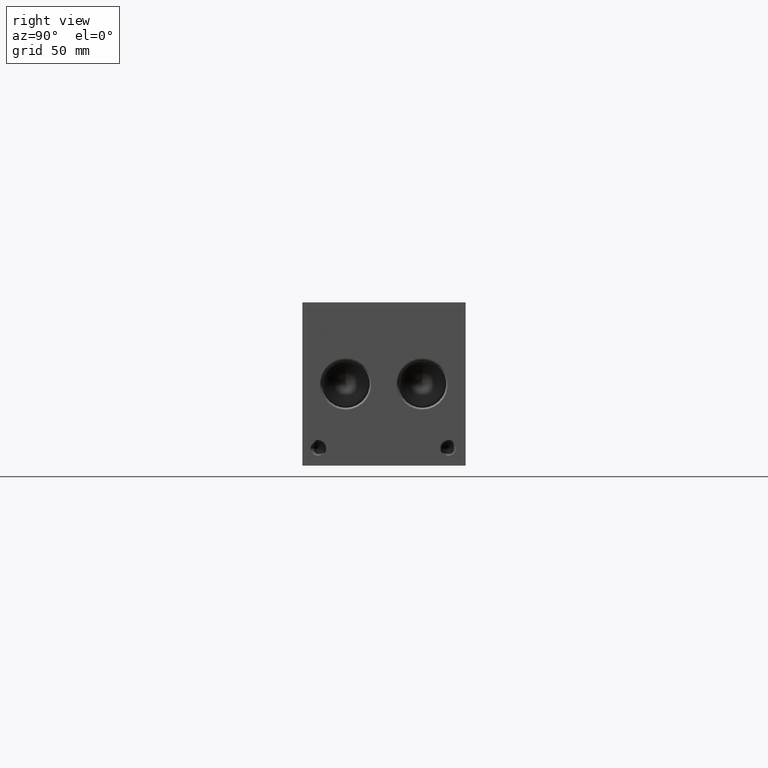
[diagram: clean part render]
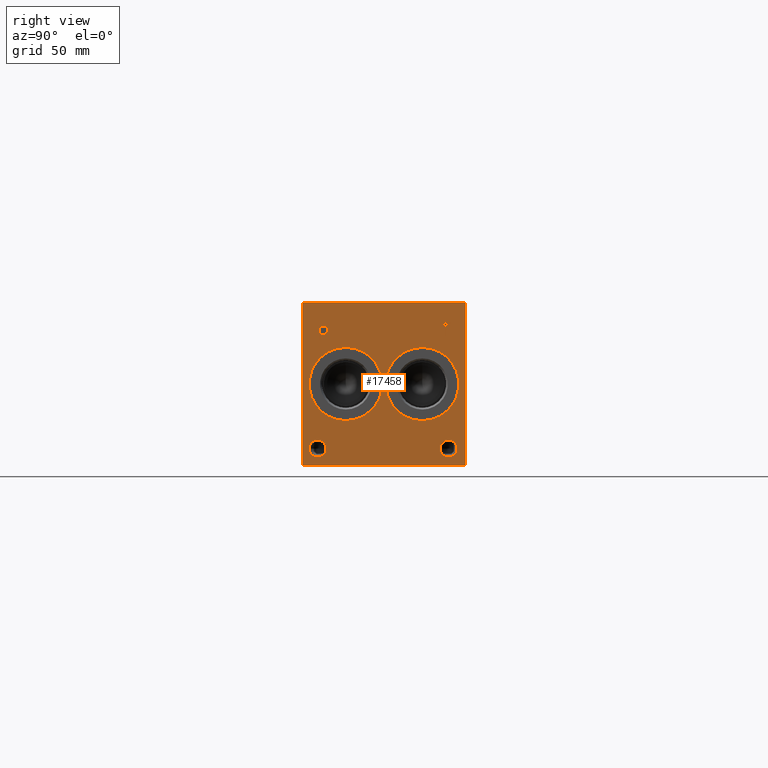
[diagram: same view with one face highlighted and labeled with its STEP entity id]
A machine part, right view. The second image highlights one B-rep face of the part: STEP entity #17458.
In plain terms, the highlighted planar face has unit normal (1, 0, 0).
Its self-contained STEP definition (entity closure, byte-faithful):
#324=CIRCLE('',#18278,17.0688);
#325=CIRCLE('',#18279,17.0688);
#326=CIRCLE('',#18280,3.9624);
#327=CIRCLE('',#18281,3.9624);
#743=FACE_BOUND('',#3044,.T.);
#744=FACE_BOUND('',#3045,.T.);
#745=FACE_BOUND('',#3046,.T.);
#746=FACE_BOUND('',#3047,.T.);
#747=FACE_BOUND('',#3048,.T.);
#748=FACE_BOUND('',#3049,.T.);
#1259=PLANE('',#18277);
#1962=FACE_OUTER_BOUND('',#3043,.T.);
#3043=EDGE_LOOP('',(#14480,#14481,#14482,#14483));
#3044=EDGE_LOOP('',(#14484));
#3045=EDGE_LOOP('',(#14485));
#3046=EDGE_LOOP('',(#14486));
#3047=EDGE_LOOP('',(#14487));
#3048=EDGE_LOOP('',(#14488,#14489,#14490,#14491,#14492,#14493,#14494,#14495));
#3049=EDGE_LOOP('',(#14496,#14497,#14498,#14499,#14500,#14501,#14502,#14503,
#14504));
#3619=LINE('',#23221,#5208);
#4762=LINE('',#29042,#6351);
#4765=LINE('',#29048,#6354);
#4768=LINE('',#29054,#6357);
#4771=LINE('',#29060,#6360);
#4774=LINE('',#29066,#6363);
#4778=LINE('',#29108,#6367);
#4779=LINE('',#29110,#6368);
#4780=LINE('',#29111,#6369);
#4781=LINE('',#29122,#6370);
#4782=LINE('',#29124,#6371);
#4783=LINE('',#29126,#6372);
#4784=LINE('',#29128,#6373);
#4785=LINE('',#29130,#6374);
#4786=LINE('',#29132,#6375);
#4787=LINE('',#29134,#6376);
#4788=LINE('',#29135,#6377);
#5208=VECTOR('',#19088,10.);
#6351=VECTOR('',#20997,10.);
#6354=VECTOR('',#21002,10.);
#6357=VECTOR('',#21007,10.);
#6360=VECTOR('',#21012,10.);
#6363=VECTOR('',#21017,10.);
#6367=VECTOR('',#21025,10.);
#6368=VECTOR('',#21026,10.);
#6369=VECTOR('',#21027,10.);
#6370=VECTOR('',#21036,10.);
#6371=VECTOR('',#21037,10.);
#6372=VECTOR('',#21038,10.);
#6373=VECTOR('',#21039,10.);
#6374=VECTOR('',#21040,10.);
#6375=VECTOR('',#21041,10.);
#6376=VECTOR('',#21042,10.);
#6377=VECTOR('',#21043,10.);
#7182=B_SPLINE_CURVE_WITH_KNOTS('',2,(#29009,#29010,#29011,#29012),
 .UNSPECIFIED.,.F.,.F.,(3,1,3),(0.,1.,2.),.UNSPECIFIED.);
#7184=B_SPLINE_CURVE_WITH_KNOTS('',2,(#29030,#29031,#29032,#29033),
 .UNSPECIFIED.,.F.,.F.,(3,1,3),(0.,1.,2.),.UNSPECIFIED.);
#7186=B_SPLINE_CURVE_WITH_KNOTS('',2,(#29079,#29080,#29081,#29082),
 .UNSPECIFIED.,.F.,.F.,(3,1,3),(0.,1.,2.),.UNSPECIFIED.);
#7188=B_SPLINE_CURVE_WITH_KNOTS('',2,(#29097,#29098,#29099,#29100),
 .UNSPECIFIED.,.F.,.F.,(3,1,3),(0.,1.,2.),.UNSPECIFIED.);
#7255=VERTEX_POINT('',#23218);
#7256=VERTEX_POINT('',#23220);
#8297=VERTEX_POINT('',#29007);
#8298=VERTEX_POINT('',#29008);
#8301=VERTEX_POINT('',#29029);
#8303=VERTEX_POINT('',#29041);
#8305=VERTEX_POINT('',#29047);
#8307=VERTEX_POINT('',#29053);
#8309=VERTEX_POINT('',#29059);
#8311=VERTEX_POINT('',#29065);
#8313=VERTEX_POINT('',#29078);
#8315=VERTEX_POINT('',#29107);
#8316=VERTEX_POINT('',#29109);
#8317=VERTEX_POINT('',#29112);
#8318=VERTEX_POINT('',#29114);
#8319=VERTEX_POINT('',#29116);
#8320=VERTEX_POINT('',#29118);
#8321=VERTEX_POINT('',#29120);
#8322=VERTEX_POINT('',#29121);
#8323=VERTEX_POINT('',#29123);
#8324=VERTEX_POINT('',#29125);
#8325=VERTEX_POINT('',#29127);
#8326=VERTEX_POINT('',#29129);
#8327=VERTEX_POINT('',#29131);
#8328=VERTEX_POINT('',#29133);
#8877=EDGE_CURVE('',#7255,#7256,#3619,.T.);
#10432=EDGE_CURVE('',#8297,#8298,#7182,.T.);
#10436=EDGE_CURVE('',#8301,#8297,#7184,.T.);
#10439=EDGE_CURVE('',#8303,#8301,#4762,.T.);
#10442=EDGE_CURVE('',#8305,#8303,#4765,.T.);
#10445=EDGE_CURVE('',#8307,#8305,#4768,.T.);
#10448=EDGE_CURVE('',#8309,#8307,#4771,.T.);
#10451=EDGE_CURVE('',#8311,#8309,#4774,.T.);
#10454=EDGE_CURVE('',#8313,#8311,#7186,.T.);
#10457=EDGE_CURVE('',#8298,#8313,#7188,.T.);
#10459=EDGE_CURVE('',#7255,#8315,#4778,.T.);
#10460=EDGE_CURVE('',#8315,#8316,#4779,.T.);
#10461=EDGE_CURVE('',#7256,#8316,#4780,.T.);
#10462=EDGE_CURVE('',#8317,#8317,#324,.T.);
#10463=EDGE_CURVE('',#8318,#8318,#325,.T.);
#10464=EDGE_CURVE('',#8319,#8319,#326,.T.);
#10465=EDGE_CURVE('',#8320,#8320,#327,.T.);
#10466=EDGE_CURVE('',#8321,#8322,#4781,.T.);
#10467=EDGE_CURVE('',#8322,#8323,#4782,.T.);
#10468=EDGE_CURVE('',#8323,#8324,#4783,.T.);
#10469=EDGE_CURVE('',#8324,#8325,#4784,.T.);
#10470=EDGE_CURVE('',#8325,#8326,#4785,.T.);
#10471=EDGE_CURVE('',#8326,#8327,#4786,.T.);
#10472=EDGE_CURVE('',#8327,#8328,#4787,.T.);
#10473=EDGE_CURVE('',#8328,#8321,#4788,.T.);
#14480=ORIENTED_EDGE('',*,*,#10459,.T.);
#14481=ORIENTED_EDGE('',*,*,#10460,.T.);
#14482=ORIENTED_EDGE('',*,*,#10461,.F.);
#14483=ORIENTED_EDGE('',*,*,#8877,.F.);
#14484=ORIENTED_EDGE('',*,*,#10462,.T.);
#14485=ORIENTED_EDGE('',*,*,#10463,.T.);
#14486=ORIENTED_EDGE('',*,*,#10464,.T.);
#14487=ORIENTED_EDGE('',*,*,#10465,.T.);
#14488=ORIENTED_EDGE('',*,*,#10466,.T.);
#14489=ORIENTED_EDGE('',*,*,#10467,.T.);
#14490=ORIENTED_EDGE('',*,*,#10468,.T.);
#14491=ORIENTED_EDGE('',*,*,#10469,.T.);
#14492=ORIENTED_EDGE('',*,*,#10470,.T.);
#14493=ORIENTED_EDGE('',*,*,#10471,.T.);
#14494=ORIENTED_EDGE('',*,*,#10472,.T.);
#14495=ORIENTED_EDGE('',*,*,#10473,.T.);
#14496=ORIENTED_EDGE('',*,*,#10432,.T.);
#14497=ORIENTED_EDGE('',*,*,#10457,.T.);
#14498=ORIENTED_EDGE('',*,*,#10454,.T.);
#14499=ORIENTED_EDGE('',*,*,#10451,.T.);
#14500=ORIENTED_EDGE('',*,*,#10448,.T.);
#14501=ORIENTED_EDGE('',*,*,#10445,.T.);
#14502=ORIENTED_EDGE('',*,*,#10442,.T.);
#14503=ORIENTED_EDGE('',*,*,#10439,.T.);
#14504=ORIENTED_EDGE('',*,*,#10436,.T.);
#17458=ADVANCED_FACE('',(#1962,#743,#744,#745,#746,#747,#748),#1259,.T.);
#18277=AXIS2_PLACEMENT_3D('',#29106,#21023,#21024);
#18278=AXIS2_PLACEMENT_3D('',#29113,#21028,#21029);
#18279=AXIS2_PLACEMENT_3D('',#29115,#21030,#21031);
#18280=AXIS2_PLACEMENT_3D('',#29117,#21032,#21033);
#18281=AXIS2_PLACEMENT_3D('',#29119,#21034,#21035);
#19088=DIRECTION('',(0.,0.,1.));
#20997=DIRECTION('',(0.,1.,0.));
#21002=DIRECTION('',(0.,0.,1.));
#21007=DIRECTION('',(0.,-1.,0.));
#21012=DIRECTION('',(0.,0.,-1.));
#21017=DIRECTION('',(0.,-1.,0.));
#21023=DIRECTION('center_axis',(1.,0.,0.));
#21024=DIRECTION('ref_axis',(0.,1.,0.));
#21025=DIRECTION('',(0.,1.,0.));
#21026=DIRECTION('',(0.,0.,1.));
#21027=DIRECTION('',(0.,1.,0.));
#21028=DIRECTION('center_axis',(-1.,0.,0.));
#21029=DIRECTION('ref_axis',(0.,0.,-1.));
#21030=DIRECTION('center_axis',(-1.,0.,0.));
#21031=DIRECTION('ref_axis',(0.,0.,-1.));
#21032=DIRECTION('center_axis',(-1.,0.,0.));
#21033=DIRECTION('ref_axis',(0.,1.,0.));
#21034=DIRECTION('center_axis',(-1.,0.,0.));
#21035=DIRECTION('ref_axis',(0.,1.,0.));
#21036=DIRECTION('',(0.,-1.,0.));
#21037=DIRECTION('',(0.,0.,1.));
#21038=DIRECTION('',(0.,-1.,0.));
#21039=DIRECTION('',(0.,0.,1.));
#21040=DIRECTION('',(0.,1.,0.));
#21041=DIRECTION('',(0.,0.,-1.));
#21042=DIRECTION('',(0.,-1.,0.));
#21043=DIRECTION('',(0.,0.,-1.));
#23218=CARTESIAN_POINT('',(323.85,0.,0.));
#23220=CARTESIAN_POINT('',(323.85,0.,76.2));
#23221=CARTESIAN_POINT('',(323.85,0.,0.));
#29007=CARTESIAN_POINT('',(323.85,11.0443172023594,64.6912681439707));
#29008=CARTESIAN_POINT('',(323.85,11.800759654532,63.1732373726039));
#29009=CARTESIAN_POINT('Ctrl Pts',(323.85,11.0443172023594,64.6912681439707));
#29010=CARTESIAN_POINT('Ctrl Pts',(323.85,11.3993820268486,64.4494123939564));
#29011=CARTESIAN_POINT('Ctrl Pts',(323.85,11.800759654532,63.7032616758269));
#29012=CARTESIAN_POINT('Ctrl Pts',(323.85,11.800759654532,63.1732373726039));
#29029=CARTESIAN_POINT('',(323.85,9.3822021543883,65.0874999046326));
#29030=CARTESIAN_POINT('Ctrl Pts',(323.85,9.3822021543883,65.0874999046326));
#29031=CARTESIAN_POINT('Ctrl Pts',(323.85,9.94824752676236,65.0874999046326));
#29032=CARTESIAN_POINT('Ctrl Pts',(323.85,10.740711048086,64.9022486918556));
#29033=CARTESIAN_POINT('Ctrl Pts',(323.85,11.0443172023594,64.6912681439707));
#29041=CARTESIAN_POINT('',(323.85,7.78698337769779,65.0874999046326));
#29042=CARTESIAN_POINT('',(323.85,3.89349168884889,65.0874999046326));
#29047=CARTESIAN_POINT('',(323.85,7.78698337769779,58.7375));
#29048=CARTESIAN_POINT('',(323.85,7.78698337769779,29.36875));
#29053=CARTESIAN_POINT('',(323.85,8.63090556923729,58.7375));
#29054=CARTESIAN_POINT('',(323.85,4.31545278461864,58.7375));
#29059=CARTESIAN_POINT('',(323.85,8.63090556923729,61.1045988299279));
#29060=CARTESIAN_POINT('',(323.85,8.63090556923729,30.5522994149639));
#29065=CARTESIAN_POINT('',(323.85,9.34618108523723,61.1045988299279));
#29066=CARTESIAN_POINT('',(323.85,4.67309054261861,61.1045988299279));
#29078=CARTESIAN_POINT('',(323.85,11.2450060162011,61.7632698086904));
#29079=CARTESIAN_POINT('Ctrl Pts',(323.85,11.2450060162011,61.7632698086904));
#29080=CARTESIAN_POINT('Ctrl Pts',(323.85,10.9156705268198,61.4390801863307));
#29081=CARTESIAN_POINT('Ctrl Pts',(323.85,10.0254355320861,61.1045988299279));
#29082=CARTESIAN_POINT('Ctrl Pts',(323.85,9.34618108523723,61.1045988299279));
#29097=CARTESIAN_POINT('Ctrl Pts',(323.85,11.800759654532,63.1732373726039));
#29098=CARTESIAN_POINT('Ctrl Pts',(323.85,11.800759654532,62.7615680108774));
#29099=CARTESIAN_POINT('Ctrl Pts',(323.85,11.5074452343018,62.0205631597695));
#29100=CARTESIAN_POINT('Ctrl Pts',(323.85,11.2450060162011,61.7632698086904));
#29106=CARTESIAN_POINT('Origin',(323.85,0.,0.));
#29107=CARTESIAN_POINT('',(323.85,76.2,0.));
#29108=CARTESIAN_POINT('',(323.85,0.,0.));
#29109=CARTESIAN_POINT('',(323.85,76.2,76.2));
#29110=CARTESIAN_POINT('',(323.85,76.2,0.));
#29111=CARTESIAN_POINT('',(323.85,0.,76.2));
#29112=CARTESIAN_POINT('',(323.85,55.9562,55.1688));
#29113=CARTESIAN_POINT('Origin',(323.85,55.9562,38.1));
#29114=CARTESIAN_POINT('',(323.85,20.2438,55.1688));
#29115=CARTESIAN_POINT('Origin',(323.85,20.2438,38.1));
#29116=CARTESIAN_POINT('',(323.85,3.1496,7.9248));
#29117=CARTESIAN_POINT('Origin',(323.85,7.112,7.9248));
#29118=CARTESIAN_POINT('',(323.85,64.3128,7.9248));
#29119=CARTESIAN_POINT('Origin',(323.85,68.2752,7.9248));
#29120=CARTESIAN_POINT('',(323.85,67.262915271453,60.325));
#29121=CARTESIAN_POINT('',(323.85,66.4189930799135,60.325));
#29122=CARTESIAN_POINT('',(323.85,33.6314576357265,60.325));
#29123=CARTESIAN_POINT('',(323.85,66.4189930799135,65.9237033194816));
#29124=CARTESIAN_POINT('',(323.85,66.4189930799135,30.1625));
#29125=CARTESIAN_POINT('',(323.85,64.2886041329784,65.9237033194816));
#29126=CARTESIAN_POINT('',(323.85,33.2094965399567,65.9237033194816));
#29127=CARTESIAN_POINT('',(323.85,64.2886041329784,66.6749999046326));
#29128=CARTESIAN_POINT('',(323.85,64.2886041329784,32.9618516597408));
#29129=CARTESIAN_POINT('',(323.85,69.3933042183881,66.6749999046326));
#29130=CARTESIAN_POINT('',(323.85,32.1443020664892,66.6749999046326));
#29131=CARTESIAN_POINT('',(323.85,69.3933042183881,65.9237033194816));
#29132=CARTESIAN_POINT('',(323.85,69.3933042183881,33.3374999523163));
#29133=CARTESIAN_POINT('',(323.85,67.262915271453,65.9237033194816));
#29134=CARTESIAN_POINT('',(323.85,34.696652109194,65.9237033194816));
#29135=CARTESIAN_POINT('',(323.85,67.262915271453,32.9618516597408));